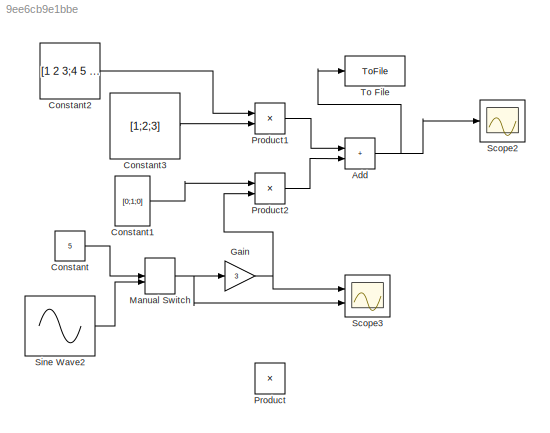
MODEL slx_9ee6cb9e1bbe
KIND model
CONFIG AbsTol = auto
CONFIG EnableMultiTasking = off
CONFIG FixedStep = 0.001
CONFIG MaxStep = auto
CONFIG MinStep = auto
CONFIG RelTol = 1e-3
CONFIG SampleTimeConstraint = Unconstrained
CONFIG Solver = ode4
CONFIG SolverName = ode4
CONFIG StartTime = 0.0
CONFIG StopTime = 10.0
BLOCK [Sum] Add
  IconShape = rectangular
  Ports = [2, 1]
BLOCK [Constant] Constant
  Value = 5
BLOCK [Constant] Constant1
  Value = [0;1;0]
  VectorParams1D = off
BLOCK [Constant] Constant2
  Value = [1 2 3;4 5 6;7 8 9]
  VectorParams1D = off
BLOCK [Constant] Constant3
  Value = [1;2;3]
  VectorParams1D = off
BLOCK [Gain] Gain
  Gain = 3
BLOCK [ManualSwitch] Manual Switch
  CurrentSetting = 0
BLOCK [Product] Product
  Ports = [2, 1]
BLOCK [Product] Product1
  Multiplication = Matrix(*)
  Ports = [2, 1]
BLOCK [Product] Product2
  Multiplication = Matrix(*)
  Ports = [2, 1]
BLOCK [Scope] Scope2
  Floating = off
  NumInputPorts = 1
  Ports = [1]
  ScopeSpecificationString = Simulink.scopes.TimeScopeBlockCfg('CurrentConfiguration', extmgr.ConfigurationSet(extmgr.Configuration('Core','General UI',true),extmgr.Configuration('Core','Source UI',true),extmgr.Configuration('Sources','WiredSimulink',true,'DataLoggingVariableName','ScopeData2'),extmgr.Configuration('Visuals','Time Domain',true,'SerializedDisplays',{struct('MinYLimReal','9.5','MaxYLimReal','54.5','YLabelReal',...<+1350ch>
BLOCK [Scope] Scope3
  Floating = off
  NumInputPorts = 2
  Ports = [2]
  ScopeSpecificationString = Simulink.scopes.TimeScopeBlockCfg('CurrentConfiguration', extmgr.ConfigurationSet(extmgr.Configuration('Core','General UI',true),extmgr.Configuration('Core','Source UI',true),extmgr.Configuration('Sources','WiredSimulink',true),extmgr.Configuration('Visuals','Time Domain',true,'SerializedDisplays',{struct('MinYLimReal','-5.62363','MaxYLimReal','5.62362','YLabelReal','','MinYLimMag','0.00000','MaxY...<+1367ch>
BLOCK [Sin] Sine Wave2
  Amplitude = 1.5
  Frequency = 50
  Ports = [0, 1]
  SampleTime = .1
BLOCK [ToFile] To File
  Filename = out2.mat
  MatrixName = wwe
  Ports = [1]
  SaveFormat = Timeseries
NET Add:1 -> Scope2:1, To File:1
LINE Constant1:1 -> Product2:1
LINE Constant2:1 -> Product1:1
LINE Constant3:1 -> Product1:2
LINE Constant:1 -> Manual Switch:1
NET Gain:1 -> Product2:2, Scope3:1
NET Manual Switch:1 -> Gain:1, Scope3:2
LINE Product1:1 -> Add:1
LINE Product2:1 -> Add:2
LINE Sine Wave2:1 -> Manual Switch:2
note: NET lines group one-source signal fan-out (src -> all destinations, sorted); 1:1 wires keep LINE
